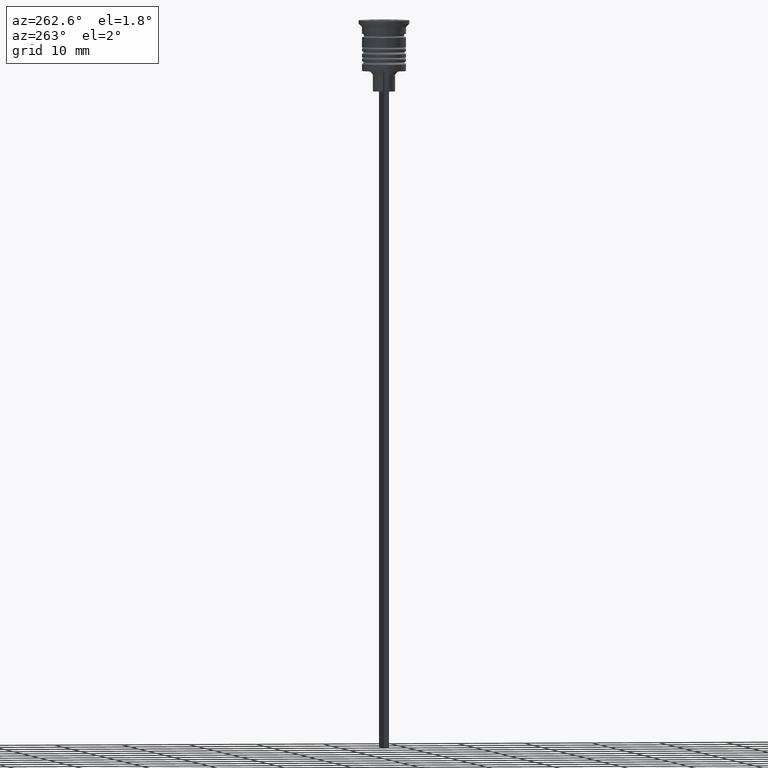
[diagram: clean part render]
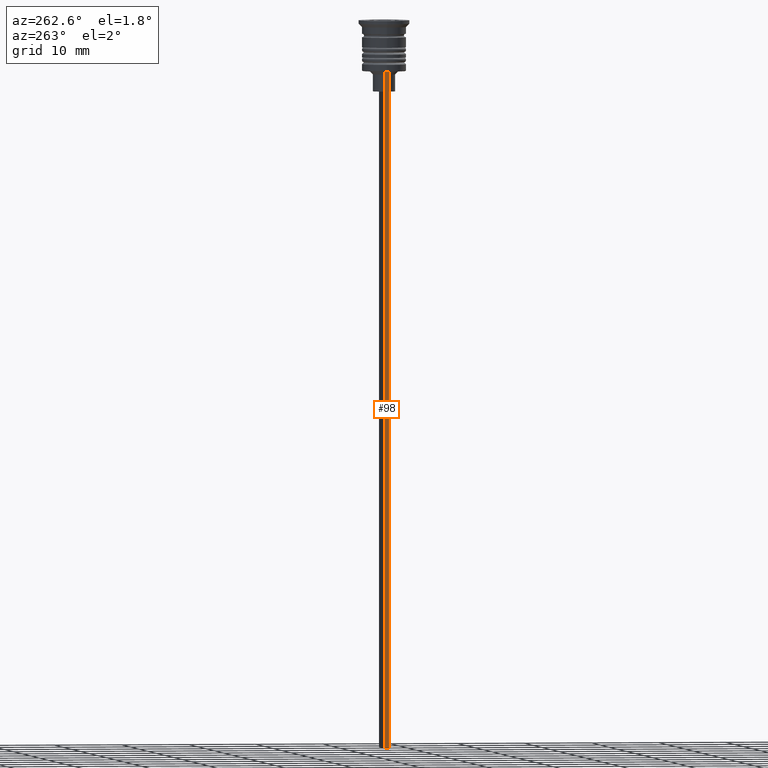
[diagram: same view with one face highlighted and labeled with its STEP entity id]
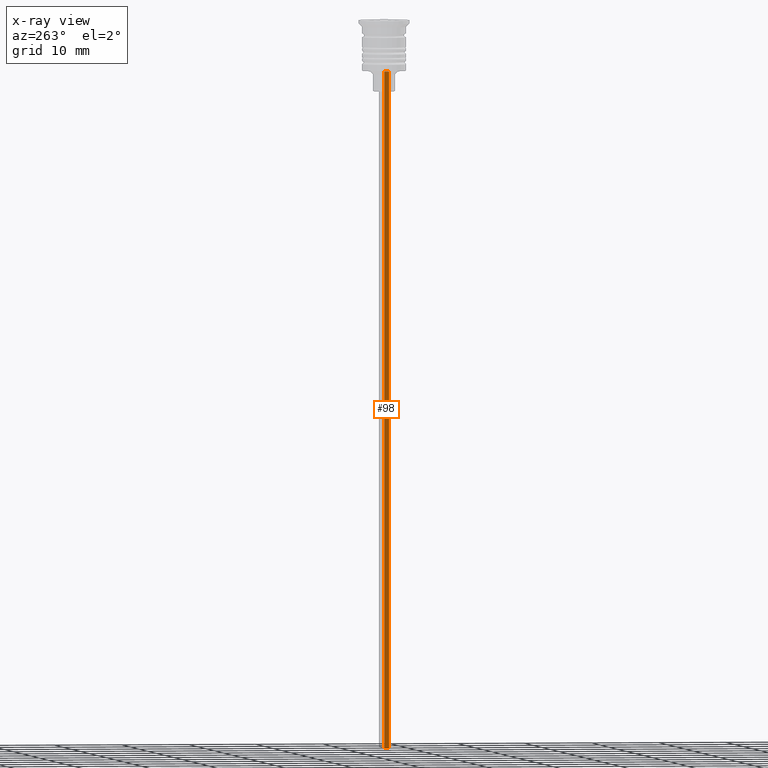
[diagram: x-ray of the same camera — body ghosted, the highlighted face saturated]
A machine part, auxiliary view. The second image highlights one B-rep face of the part: STEP entity #98.
The next image is the same camera in x-ray: the body ghosted, the highlighted face saturated — about 0% of this face is hidden behind the body in this view.
In plain terms, the highlighted planar face has unit normal (-1, 0, 0).
Its self-contained STEP definition (entity closure, byte-faithful):
#98 = ADVANCED_FACE ( 'NONE', ( #945 ), #1107, .T. ) ;
#156 = ORIENTED_EDGE ( 'NONE', *, *, #1699, .F. ) ;
#281 = DIRECTION ( 'NONE',  ( 0.000000000000000000, 0.000000000000000000, 1.000000000000000000 ) ) ;
#422 = ORIENTED_EDGE ( 'NONE', *, *, #1828, .T. ) ;
#429 = LINE ( 'NONE', #1312, #1814 ) ;
#463 = DIRECTION ( 'NONE',  ( 0.000000000000000000, 1.000000000000000000, 0.000000000000000000 ) ) ;
#485 = VERTEX_POINT ( 'NONE', #943 ) ;
#621 = EDGE_LOOP ( 'NONE', ( #1281, #422, #156, #1907 ) ) ;
#738 = VERTEX_POINT ( 'NONE', #1768 ) ;
#765 = CARTESIAN_POINT ( 'NONE',  ( -3.000000000000004441, -0.3500000000000000333, -107.5000000000000000 ) ) ;
#772 = CARTESIAN_POINT ( 'NONE',  ( -3.000000000000004441, -0.3500000000000000333, -7.500000000000000000 ) ) ;
#811 = LINE ( 'NONE', #765, #1320 ) ;
#888 = EDGE_CURVE ( 'NONE', #1716, #485, #429, .T. ) ;
#910 = EDGE_CURVE ( 'NONE', #738, #1716, #1090, .T. ) ;
#943 = CARTESIAN_POINT ( 'NONE',  ( -3.000000000000004441, -0.3500000000000000333, -107.5000000000000000 ) ) ;
#945 = FACE_OUTER_BOUND ( 'NONE', #621, .T. ) ;
#968 = AXIS2_PLACEMENT_3D ( 'NONE', #1631, #1793, #281 ) ;
#1090 = LINE ( 'NONE', #772, #2091 ) ;
#1107 = PLANE ( 'NONE',  #968 ) ;
#1257 = VERTEX_POINT ( 'NONE', #1735 ) ;
#1281 = ORIENTED_EDGE ( 'NONE', *, *, #910, .F. ) ;
#1312 = CARTESIAN_POINT ( 'NONE',  ( -3.000000000000004441, -0.3500000000000000333, -1.459304675784417915 ) ) ;
#1320 = VECTOR ( 'NONE', #463, 1000.000000000000000 ) ;
#1340 = LINE ( 'NONE', #2010, #1682 ) ;
#1618 = DIRECTION ( 'NONE',  ( 0.000000000000000000, -1.000000000000000000, 0.000000000000000000 ) ) ;
#1631 = CARTESIAN_POINT ( 'NONE',  ( -3.000000000000004441, -0.3500000000000000333, -1.459304675784417915 ) ) ;
#1682 = VECTOR ( 'NONE', #1842, 1000.000000000000000 ) ;
#1699 = EDGE_CURVE ( 'NONE', #485, #1257, #811, .T. ) ;
#1716 = VERTEX_POINT ( 'NONE', #2151 ) ;
#1735 = CARTESIAN_POINT ( 'NONE',  ( -3.000000000000004441, 0.3500000000000000333, -107.5000000000000000 ) ) ;
#1768 = CARTESIAN_POINT ( 'NONE',  ( -3.000000000000004441, 0.3499999999999999223, -7.500000000000000000 ) ) ;
#1793 = DIRECTION ( 'NONE',  ( -1.000000000000000000, 0.000000000000000000, 0.000000000000000000 ) ) ;
#1806 = DIRECTION ( 'NONE',  ( 0.000000000000000000, 0.000000000000000000, -1.000000000000000000 ) ) ;
#1814 = VECTOR ( 'NONE', #1806, 1000.000000000000000 ) ;
#1828 = EDGE_CURVE ( 'NONE', #738, #1257, #1340, .T. ) ;
#1842 = DIRECTION ( 'NONE',  ( 0.000000000000000000, 0.000000000000000000, -1.000000000000000000 ) ) ;
#1907 = ORIENTED_EDGE ( 'NONE', *, *, #888, .F. ) ;
#2010 = CARTESIAN_POINT ( 'NONE',  ( -3.000000000000004441, 0.3500000000000000333, -1.459304675784417915 ) ) ;
#2091 = VECTOR ( 'NONE', #1618, 1000.000000000000000 ) ;
#2151 = CARTESIAN_POINT ( 'NONE',  ( -3.000000000000004441, -0.3500000000000000333, -7.500000000000000000 ) ) ;